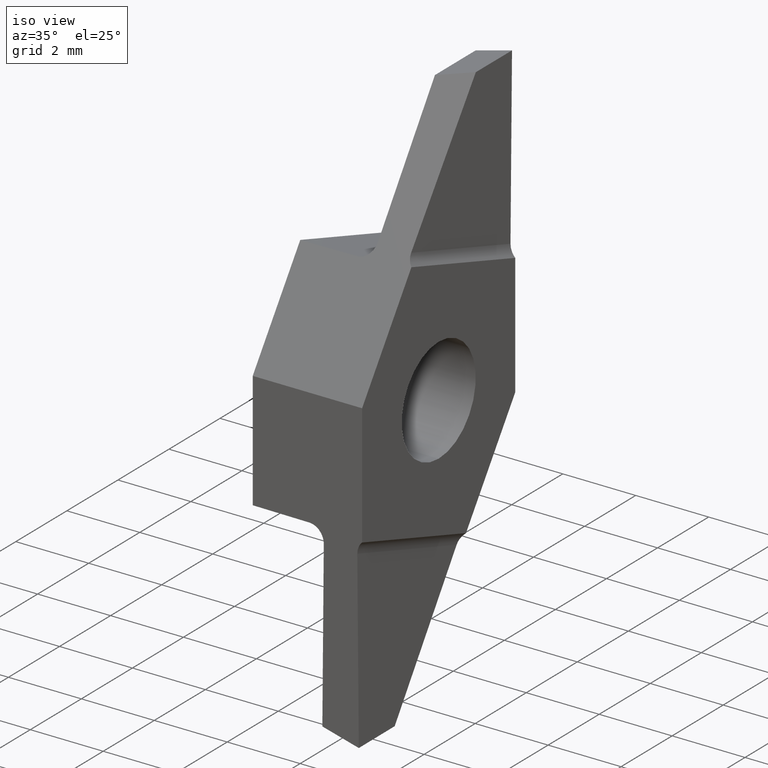
[diagram: clean part render]
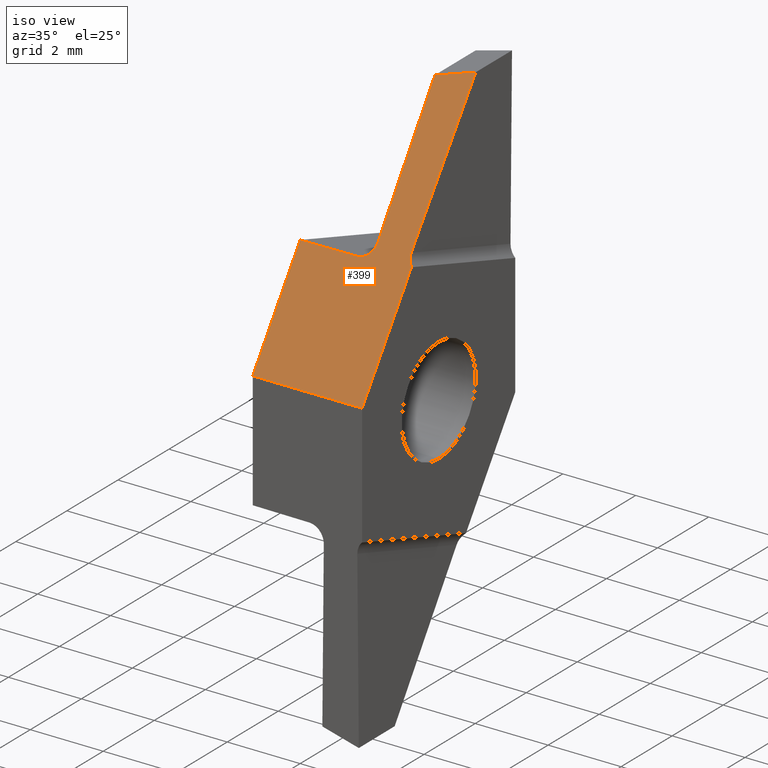
[diagram: same view with one face highlighted and labeled with its STEP entity id]
A machine part, iso view. The second image highlights one B-rep face of the part: STEP entity #399.
In plain terms, the highlighted planar face has unit normal (0, 0.8192, -0.5736).
Its self-contained STEP definition (entity closure, byte-faithful):
#3 = DIRECTION ( 'NONE',  ( 0.000000000000000000, 0.5735764363510446051, 0.8191520442889929088 ) ) ;
#12 = ORIENTED_EDGE ( 'NONE', *, *, #109, .T. ) ;
#22 = CARTESIAN_POINT ( 'NONE',  ( 3.000000000000000000, -2.999999999999831246, 0.9458963666369498702 ) ) ;
#29 = DIRECTION ( 'NONE',  ( -0.9504440842960546476, -0.1783223612929410173, -0.2546707248380619681 ) ) ;
#32 = LINE ( 'NONE', #534, #63 ) ;
#40 = DIRECTION ( 'NONE',  ( -1.000000000000000000, 0.000000000000000000, 0.000000000000000000 ) ) ;
#45 = CARTESIAN_POINT ( 'NONE',  ( 1.552902005048489853, -1.130420593828511899, 3.615932469007118399 ) ) ;
#51 = VERTEX_POINT ( 'NONE', #466 ) ;
#56 = CARTESIAN_POINT ( 'NONE',  ( 1.787371315628932145, -1.129253392658269073, 3.617599405031864723 ) ) ;
#63 = VECTOR ( 'NONE', #228, 1000.000000000000227 ) ;
#68 = CARTESIAN_POINT ( 'NONE',  ( 3.000000000000000000, 1.823566348508409485, 7.834663032647361192 ) ) ;
#90 = VERTEX_POINT ( 'NONE', #370 ) ;
#91 = EDGE_CURVE ( 'NONE', #209, #186, #585, .T. ) ;
#103 = CARTESIAN_POINT ( 'NONE',  ( 2.867023292970519055, -0.9584479486038182117, 3.861534859498934935 ) ) ;
#109 = EDGE_CURVE ( 'NONE', #371, #273, #487, .T. ) ;
#110 = EDGE_CURVE ( 'NONE', #273, #555, #32, .T. ) ;
#135 = VECTOR ( 'NONE', #40, 1000.000000000000000 ) ;
#141 = ORIENTED_EDGE ( 'NONE', *, *, #439, .T. ) ;
#150 = CARTESIAN_POINT ( 'NONE',  ( 1.951716850284155313, -1.028943747718853663, 3.760856424509101181 ) ) ;
#164 = AXIS2_PLACEMENT_3D ( 'NONE', #68, #303, #3 ) ;
#165 = VECTOR ( 'NONE', #437, 1000.000000000000227 ) ;
#166 = PLANE ( 'NONE',  #164 ) ;
#186 = VERTEX_POINT ( 'NONE', #433 ) ;
#188 = CARTESIAN_POINT ( 'NONE',  ( 3.000000000000000444, -1.069002824306939825, 3.703646134127897671 ) ) ;
#193 = VERTEX_POINT ( 'NONE', #188 ) ;
#194 = CARTESIAN_POINT ( 'NONE',  ( 2.868089764816377674, -0.8887383937414377044, 3.961090421326522559 ) ) ;
#197 = VECTOR ( 'NONE', #411, 999.9999999999998863 ) ;
#198 = CARTESIAN_POINT ( 'NONE',  ( 1.914519305005153882, 1.402460638096504342, 7.233261751695358122 ) ) ;
#204 = LINE ( 'NONE', #503, #493 ) ;
#209 = VERTEX_POINT ( 'NONE', #496 ) ;
#212 = CARTESIAN_POINT ( 'NONE',  ( 3.000000000000000000, 1.823566348508409485, 7.834663032647361192 ) ) ;
#228 = DIRECTION ( 'NONE',  ( 0.008774687666367861696, -0.5735543546259365133, -0.8191205083172946599 ) ) ;
#248 = DIRECTION ( 'NONE',  ( 0.008774687666360843005, 0.5735543546259365133, 0.8191205083172946599 ) ) ;
#265 = EDGE_CURVE ( 'NONE', #555, #90, #341, .T. ) ;
#273 = VERTEX_POINT ( 'NONE', #198 ) ;
#289 = ORIENTED_EDGE ( 'NONE', *, *, #91, .F. ) ;
#295 = CARTESIAN_POINT ( 'NONE',  ( 1.949565382969295380, -0.8883138479216154959, 3.961696735592872720 ) ) ;
#296 = VECTOR ( 'NONE', #29, 1000.000000000000227 ) ;
#303 = DIRECTION ( 'NONE',  ( 0.000000000000000000, 0.8191520442889929088, -0.5735764363510446051 ) ) ;
#334 = ORIENTED_EDGE ( 'NONE', *, *, #265, .T. ) ;
#337 = ORIENTED_EDGE ( 'NONE', *, *, #110, .T. ) ;
#341 =( BOUNDED_CURVE ( )  B_SPLINE_CURVE ( 3, ( #635, #150, #56, #45 ),
 .UNSPECIFIED., .F., .F. ) 
 B_SPLINE_CURVE_WITH_KNOTS ( ( 4, 4 ),
 ( 4.703213266088003053, 6.274885753270528888 ),
 .UNSPECIFIED. ) 
 CURVE ( )  GEOMETRIC_REPRESENTATION_ITEM ( )  RATIONAL_B_SPLINE_CURVE ( ( 1.000000000000000000, 0.8045312959125139329, 0.8045312959125139329, 1.000000000000000000 ) ) 
 REPRESENTATION_ITEM ( '' )  );
#345 = EDGE_LOOP ( 'NONE', ( #334, #388, #141, #289, #509, #589, #350, #12, #337 ) ) ;
#350 = ORIENTED_EDGE ( 'NONE', *, *, #556, .T. ) ;
#352 = EDGE_CURVE ( 'NONE', #193, #209, #516, .T. ) ;
#370 = CARTESIAN_POINT ( 'NONE',  ( 1.552902005048489853, -1.130420593828511899, 3.615932469007118399 ) ) ;
#371 = VERTEX_POINT ( 'NONE', #416 ) ;
#377 = CARTESIAN_POINT ( 'NONE',  ( 0.000000000000000000, 1.823566348508409485, 7.834663032647361192 ) ) ;
#381 = DIRECTION ( 'NONE',  ( 0.000000000000000000, -0.5735764363510446051, -0.8191520442889929088 ) ) ;
#388 = ORIENTED_EDGE ( 'NONE', *, *, #612, .T. ) ;
#399 = ADVANCED_FACE ( 'NONE', ( #569 ), #166, .F. ) ;
#411 = DIRECTION ( 'NONE',  ( 0.000000000000000000, -0.5735764363510446051, -0.8191520442889929088 ) ) ;
#415 = VERTEX_POINT ( 'NONE', #561 ) ;
#416 = CARTESIAN_POINT ( 'NONE',  ( 2.905988210179870190, 1.588480078104101523, 7.498925044157489950 ) ) ;
#419 = LINE ( 'NONE', #377, #609 ) ;
#433 = CARTESIAN_POINT ( 'NONE',  ( 0.000000000000000000, -2.999999999999831246, 0.9458963666369498702 ) ) ;
#437 = DIRECTION ( 'NONE',  ( -0.9999623398293699950, -0.004977867723315087915, -0.007109131866878383617 ) ) ;
#439 = EDGE_CURVE ( 'NONE', #51, #186, #419, .T. ) ;
#466 = CARTESIAN_POINT ( 'NONE',  ( 2.106771404438143542E-16, -1.138151025726298116, 3.604892268101038688 ) ) ;
#477 = CARTESIAN_POINT ( 'NONE',  ( 2.913735021948772097, -1.022282746663827568, 3.770369319888747572 ) ) ;
#487 = LINE ( 'NONE', #490, #296 ) ;
#490 = CARTESIAN_POINT ( 'NONE',  ( 3.112022366277341856, 1.627136215618504300, 7.554131729897035186 ) ) ;
#493 = VECTOR ( 'NONE', #248, 1000.000000000000000 ) ;
#496 = CARTESIAN_POINT ( 'NONE',  ( 3.000000000000000000, -2.999999999999831246, 0.9458963666369498702 ) ) ;
#503 = CARTESIAN_POINT ( 'NONE',  ( 2.909591707215107181, 1.824021386812475720, 7.835312894694787644 ) ) ;
#509 = ORIENTED_EDGE ( 'NONE', *, *, #352, .F. ) ;
#516 = LINE ( 'NONE', #212, #197 ) ;
#526 = CARTESIAN_POINT ( 'NONE',  ( 3.000000000000000444, -1.069002824306939825, 3.703646134127897671 ) ) ;
#534 = CARTESIAN_POINT ( 'NONE',  ( 1.908160969919550531, 1.818070961241855521, 7.826814806276837899 ) ) ;
#550 = EDGE_CURVE ( 'NONE', #193, #415, #551, .T. ) ;
#551 =( BOUNDED_CURVE ( )  B_SPLINE_CURVE ( 3, ( #526, #477, #103, #194 ),
 .UNSPECIFIED., .F., .F. ) 
 B_SPLINE_CURVE_WITH_KNOTS ( ( 4, 4 ),
 ( 0.7344544033426735341, 1.579972041091575186 ),
 .UNSPECIFIED. ) 
 CURVE ( )  GEOMETRIC_REPRESENTATION_ITEM ( )  RATIONAL_B_SPLINE_CURVE ( ( 1.000000000000000000, 0.9413070198067641225, 0.9413070198067641225, 1.000000000000000000 ) ) 
 REPRESENTATION_ITEM ( '' )  );
#555 = VERTEX_POINT ( 'NONE', #295 ) ;
#556 = EDGE_CURVE ( 'NONE', #415, #371, #204, .T. ) ;
#561 = CARTESIAN_POINT ( 'NONE',  ( 2.868089764816377674, -0.8887383937414377044, 3.961090421326522559 ) ) ;
#569 = FACE_OUTER_BOUND ( 'NONE', #345, .T. ) ;
#585 = LINE ( 'NONE', #22, #135 ) ;
#589 = ORIENTED_EDGE ( 'NONE', *, *, #550, .T. ) ;
#596 = CARTESIAN_POINT ( 'NONE',  ( 3.044585391019133613, -1.122994911595623257, 3.626537442286718704 ) ) ;
#609 = VECTOR ( 'NONE', #381, 999.9999999999998863 ) ;
#612 = EDGE_CURVE ( 'NONE', #90, #51, #634, .T. ) ;
#634 = LINE ( 'NONE', #596, #165 ) ;
#635 = CARTESIAN_POINT ( 'NONE',  ( 1.949565382969295380, -0.8883138479216154959, 3.961696735592872720 ) ) ;